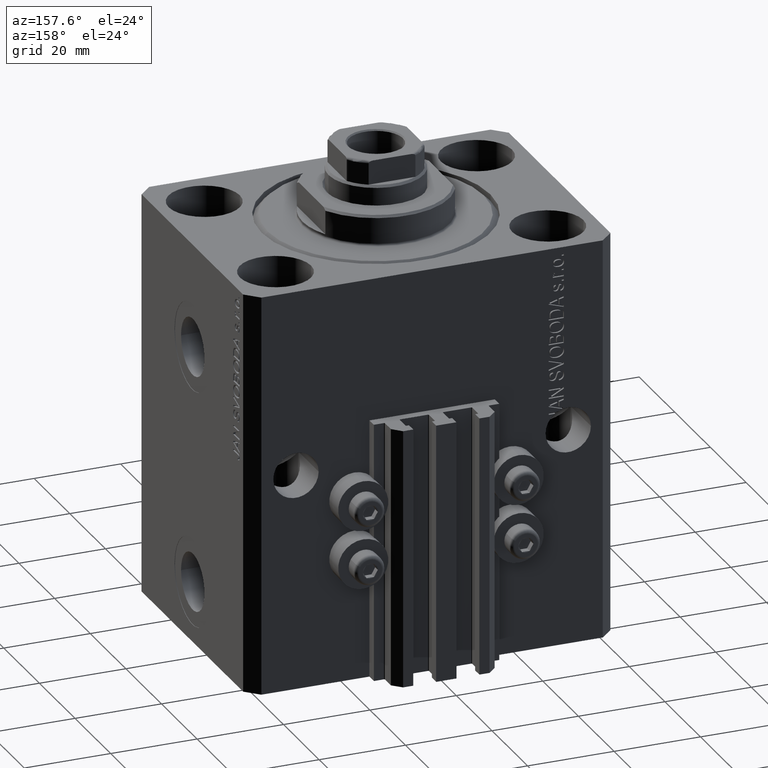
[diagram: clean part render]
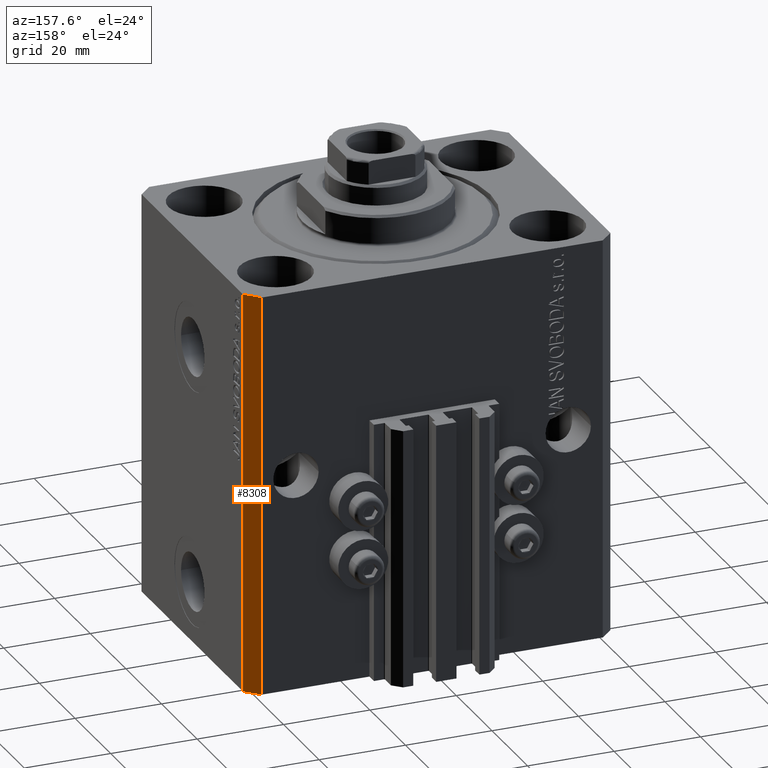
[diagram: same view with one face highlighted and labeled with its STEP entity id]
A machine part, auxiliary view. The second image highlights one B-rep face of the part: STEP entity #8308.
In plain terms, the highlighted planar face has unit normal (0.7071, 0.7071, 0).
Its self-contained STEP definition (entity closure, byte-faithful):
#2255 = DIRECTION ( 'NONE',  ( 0.000000000000000000, 0.000000000000000000, 1.000000000000000000 ) ) ;
#2750 = CARTESIAN_POINT ( 'NONE',  ( 42.50000000000051870, 28.49999999999995381, 0.000000000000000000 ) ) ;
#4399 = VERTEX_POINT ( 'NONE', #6892 ) ;
#5298 = VECTOR ( 'NONE', #43432, 1000.000000000000114 ) ;
#5403 = DIRECTION ( 'NONE',  ( -0.7071067811865356934, 0.7071067811865594521, 0.000000000000000000 ) ) ;
#5864 = LINE ( 'NONE', #20572, #31143 ) ;
#5915 = CARTESIAN_POINT ( 'NONE',  ( 42.50000000000051870, 28.49999999999995381, -93.00000000000000000 ) ) ;
#6892 = CARTESIAN_POINT ( 'NONE',  ( 39.50000000000056843, 31.50000000000000000, -93.00000000000000000 ) ) ;
#8308 = ADVANCED_FACE ( 'NONE', ( #14101 ), #46355, .T. ) ;
#8586 = ORIENTED_EDGE ( 'NONE', *, *, #20123, .F. ) ;
#9498 = LINE ( 'NONE', #2750, #47633 ) ;
#10459 = LINE ( 'NONE', #43901, #5298 ) ;
#11541 = ORIENTED_EDGE ( 'NONE', *, *, #17512, .T. ) ;
#14101 = FACE_OUTER_BOUND ( 'NONE', #20275, .T. ) ;
#14427 = ORIENTED_EDGE ( 'NONE', *, *, #31206, .T. ) ;
#17512 = EDGE_CURVE ( 'NONE', #39060, #4399, #10459, .T. ) ;
#20123 = EDGE_CURVE ( 'NONE', #39771, #46689, #9498, .T. ) ;
#20275 = EDGE_LOOP ( 'NONE', ( #8586, #38135, #11541, #14427 ) ) ;
#20572 = CARTESIAN_POINT ( 'NONE',  ( 42.50000000000051870, 28.49999999999995381, -93.00000000000000000 ) ) ;
#20623 = DIRECTION ( 'NONE',  ( -0.7071067811865355823, 0.7071067811865594521, 0.000000000000000000 ) ) ;
#21291 = CARTESIAN_POINT ( 'NONE',  ( 42.50000000000051870, 28.49999999999995381, -93.00000000000000000 ) ) ;
#22538 = CARTESIAN_POINT ( 'NONE',  ( 39.50000000000056843, 31.50000000000000000, 0.000000000000000000 ) ) ;
#23908 = AXIS2_PLACEMENT_3D ( 'NONE', #5915, #31957, #20623 ) ;
#25138 = LINE ( 'NONE', #47472, #27989 ) ;
#27989 = VECTOR ( 'NONE', #28979, 1000.000000000000000 ) ;
#28979 = DIRECTION ( 'NONE',  ( 0.000000000000000000, 0.000000000000000000, 1.000000000000000000 ) ) ;
#31143 = VECTOR ( 'NONE', #2255, 1000.000000000000000 ) ;
#31206 = EDGE_CURVE ( 'NONE', #4399, #46689, #25138, .T. ) ;
#31957 = DIRECTION ( 'NONE',  ( 0.7071067811865594521, 0.7071067811865355823, -0.000000000000000000 ) ) ;
#34591 = EDGE_CURVE ( 'NONE', #39060, #39771, #5864, .T. ) ;
#38135 = ORIENTED_EDGE ( 'NONE', *, *, #34591, .F. ) ;
#38705 = CARTESIAN_POINT ( 'NONE',  ( 42.50000000000051870, 28.49999999999995381, 0.000000000000000000 ) ) ;
#39060 = VERTEX_POINT ( 'NONE', #21291 ) ;
#39771 = VERTEX_POINT ( 'NONE', #38705 ) ;
#43432 = DIRECTION ( 'NONE',  ( -0.7071067811865356934, 0.7071067811865594521, 0.000000000000000000 ) ) ;
#43901 = CARTESIAN_POINT ( 'NONE',  ( 42.50000000000051870, 28.49999999999995381, -93.00000000000000000 ) ) ;
#46355 = PLANE ( 'NONE',  #23908 ) ;
#46689 = VERTEX_POINT ( 'NONE', #22538 ) ;
#47472 = CARTESIAN_POINT ( 'NONE',  ( 39.50000000000056843, 31.50000000000000000, -93.00000000000000000 ) ) ;
#47633 = VECTOR ( 'NONE', #5403, 1000.000000000000114 ) ;